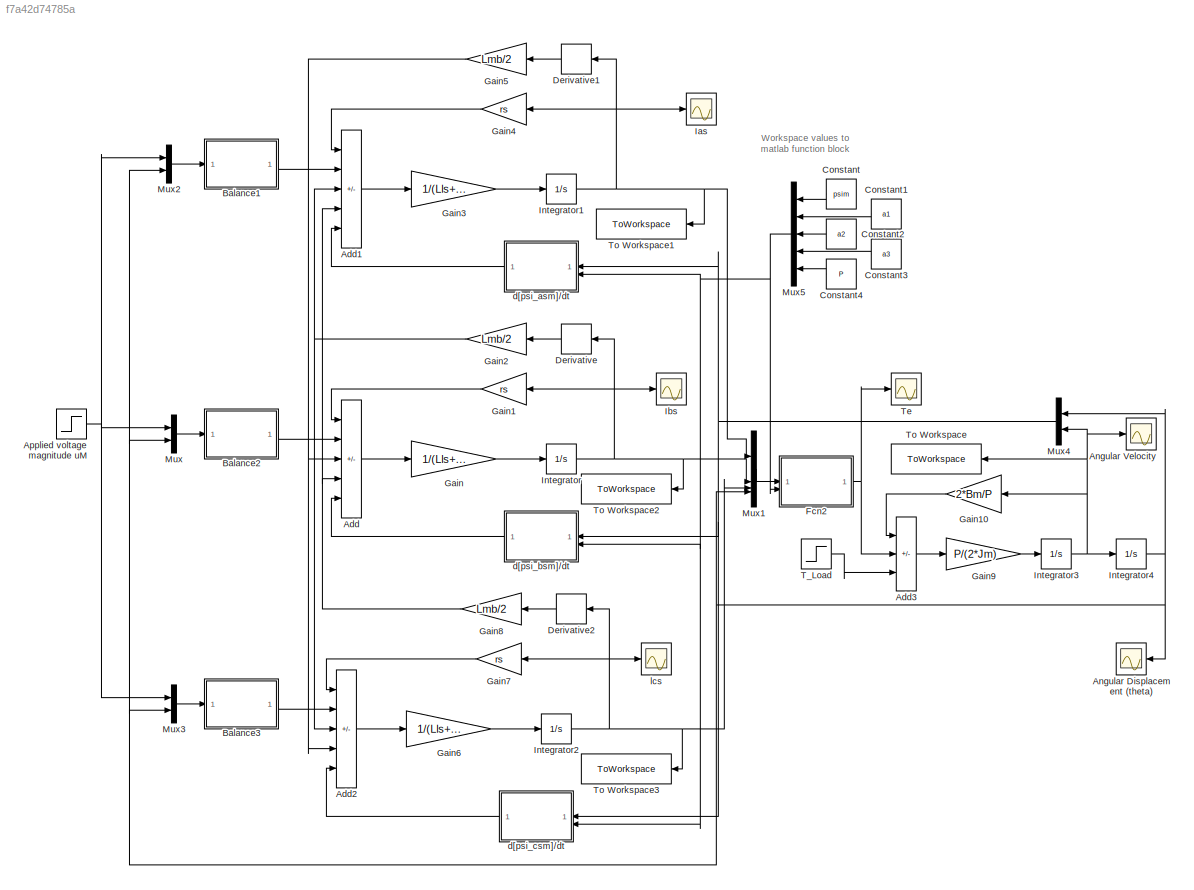
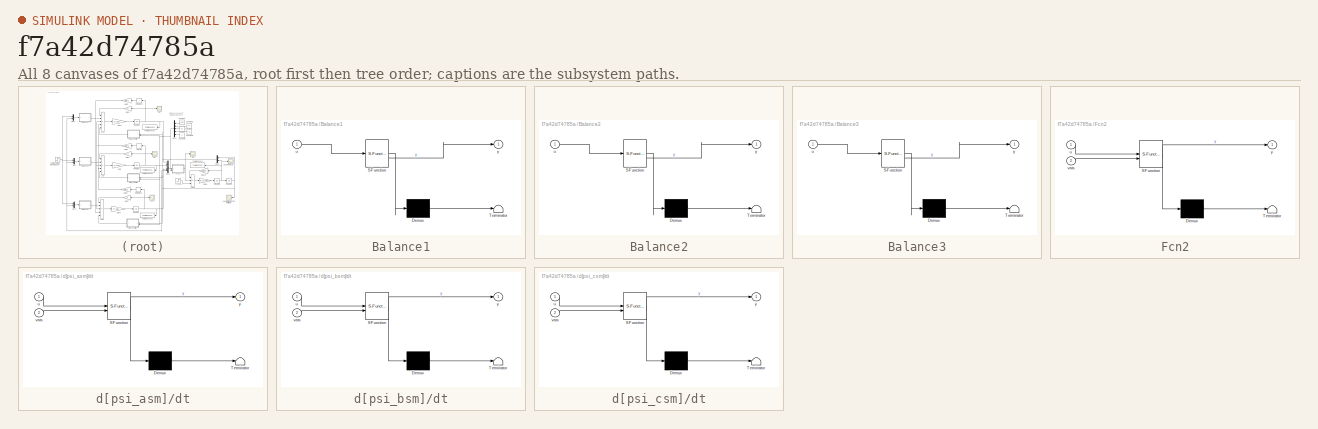
[diagram: thumbnail index - all 8 canvases of the model, root first then tree order]
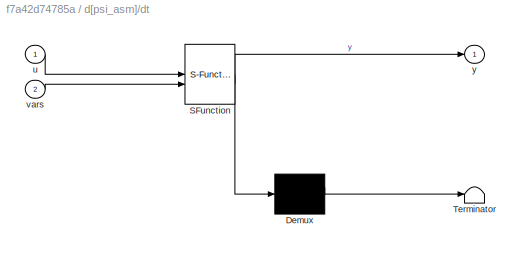
MODEL slx_f7a42d74785a
KIND model
CONFIG AbsTol = 1e-9
CONFIG EnableMultiTasking = off
CONFIG FixedStep = auto
CONFIG MaxStep = auto
CONFIG MinStep = auto
CONFIG RelTol = 1e-9
CONFIG SampleTimeConstraint = Unconstrained
CONFIG SolverName = VariableStepAuto
CONFIG StartTime = 0.0
CONFIG StopTime = 0.05
BLOCK [Sum] Add
  IconShape = rectangular
  Inputs = -+++-
BLOCK [Sum] Add1
  IconShape = rectangular
  Inputs = -+++-
BLOCK [Sum] Add2
  IconShape = rectangular
  Inputs = -+++-
BLOCK [Sum] Add3
  IconShape = rectangular
  Inputs = -+-
BLOCK [Scope] Angular Displacement (theta)
  Floating = off
  NumInputPorts = 1
  ScopeSpecificationString = Simulink.scopes.TimeScopeBlockCfg('CurrentConfiguration', extmgr.ConfigurationSet(extmgr.Configuration('Core','General UI',true),extmgr.Configuration('Core','Source UI',true),extmgr.Configuration('Sources','WiredSimulink',true,'DataLoggingVariableName','ScopeData4'),extmgr.Configuration('Visuals','Time Domain',true,'SerializedDisplays',{struct('MinYLimReal','-2.99483','MaxYLimReal','26.95343','YLa...<+1363ch>
BLOCK [Scope] Angular Velocity
  Floating = off
  NumInputPorts = 1
  ScopeSpecificationString = Simulink.scopes.TimeScopeBlockCfg('CurrentConfiguration', extmgr.ConfigurationSet(extmgr.Configuration('Core','General UI',true),extmgr.Configuration('Core','Source UI',true),extmgr.Configuration('Sources','WiredSimulink',true,'DataLoggingVariableName','ScopeData3'),extmgr.Configuration('Visuals','Time Domain',true,'SerializedDisplays',{struct('MinYLimReal','-142.91451','MaxYLimReal','1285.77201',...<+1529ch>
BLOCK [Step] Applied voltage magnitude uM
  After = uM
  SampleTime = 0
  Time = 0
BLOCK [SubSystem] Balance1
  ErrorFcn = Stateflow.Translate.translate
  LibrarySourceBlock = simulink/User-Defined\nFunctions/MATLAB Function
  PermitHierarchicalResolution = ExplicitOnly
  SFBlockType = MATLAB Function
  TreatAsAtomicUnit = on
BLOCK [Demux] Balance1/ Demux 
  Outputs = 1
BLOCK [S-Function] Balance1/ SFunction 
  EnableBusSupport = on
  FunctionName = sf_sfun
  PortCounts = [1 2]
  SFcnIsStateOwnerBlock = off
  SFunctionDeploymentMode = off
  Tag = Stateflow S-Function 1
BLOCK [Terminator] Balance1/ Terminator 
BLOCK [Inport] Balance1/u
BLOCK [Outport] Balance1/y
BLOCK [SubSystem] Balance2
  ErrorFcn = Stateflow.Translate.translate
  LibrarySourceBlock = simulink/User-Defined\nFunctions/MATLAB Function
  PermitHierarchicalResolution = ExplicitOnly
  SFBlockType = MATLAB Function
  TreatAsAtomicUnit = on
BLOCK [Demux] Balance2/ Demux 
  Outputs = 1
BLOCK [S-Function] Balance2/ SFunction 
  EnableBusSupport = on
  FunctionName = sf_sfun
  PortCounts = [1 2]
  SFcnIsStateOwnerBlock = off
  SFunctionDeploymentMode = off
  Tag = Stateflow S-Function 3
BLOCK [Terminator] Balance2/ Terminator 
BLOCK [Inport] Balance2/u
BLOCK [Outport] Balance2/y
BLOCK [SubSystem] Balance3
  ErrorFcn = Stateflow.Translate.translate
  LibrarySourceBlock = simulink/User-Defined\nFunctions/MATLAB Function
  PermitHierarchicalResolution = ExplicitOnly
  SFBlockType = MATLAB Function
  TreatAsAtomicUnit = on
BLOCK [Demux] Balance3/ Demux 
  Outputs = 1
BLOCK [S-Function] Balance3/ SFunction 
  EnableBusSupport = on
  FunctionName = sf_sfun
  PortCounts = [1 2]
  SFcnIsStateOwnerBlock = off
  SFunctionDeploymentMode = off
  Tag = Stateflow S-Function 4
BLOCK [Terminator] Balance3/ Terminator 
BLOCK [Inport] Balance3/u
BLOCK [Outport] Balance3/y
BLOCK [Constant] Constant
  NameLocation = top
  Value = psim
BLOCK [Constant] Constant1
  NameLocation = top
  Value = a1
BLOCK [Constant] Constant2
  NameLocation = top
  Value = a2
BLOCK [Constant] Constant3
  NameLocation = top
  Value = a3
BLOCK [Constant] Constant4
  NameLocation = top
  Value = P
BLOCK [Derivative] Derivative
  NameLocation = top
BLOCK [Derivative] Derivative1
  NameLocation = top
BLOCK [Derivative] Derivative2
  NameLocation = top
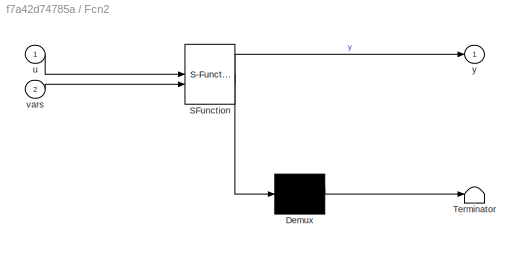
BLOCK [SubSystem] Fcn2
  ErrorFcn = Stateflow.Translate.translate
  LibrarySourceBlock = simulink/User-Defined\nFunctions/MATLAB Function
  PermitHierarchicalResolution = ExplicitOnly
  SFBlockType = MATLAB Function
  TreatAsAtomicUnit = on
BLOCK [Demux] Fcn2/ Demux 
  Outputs = 1
BLOCK [S-Function] Fcn2/ SFunction 
  EnableBusSupport = on
  FunctionName = sf_sfun
  PortCounts = [2 2]
  SFcnIsStateOwnerBlock = off
  SFunctionDeploymentMode = off
  Tag = Stateflow S-Function 2
BLOCK [Terminator] Fcn2/ Terminator 
BLOCK [Inport] Fcn2/u
BLOCK [Inport] Fcn2/vars
  Port = 2
BLOCK [Outport] Fcn2/y
BLOCK [Gain] Gain
  Gain = 1/(Lls+Lmb)
BLOCK [Gain] Gain1
  Gain = rs
  NameLocation = top
BLOCK [Gain] Gain10
  Gain = 2*Bm/P
  NameLocation = top
BLOCK [Gain] Gain2
  Gain = Lmb/2
  NameLocation = top
BLOCK [Gain] Gain3
  Gain = 1/(Lls+Lmb)
BLOCK [Gain] Gain4
  Gain = rs
  NameLocation = top
BLOCK [Gain] Gain5
  Gain = Lmb/2
  NameLocation = top
BLOCK [Gain] Gain6
  Gain = 1/(Lls+Lmb)
BLOCK [Gain] Gain7
  Gain = rs
  NameLocation = top
BLOCK [Gain] Gain8
  Gain = Lmb/2
  NameLocation = top
BLOCK [Gain] Gain9
  Gain = P/(2*Jm)
BLOCK [Scope] Ias
  Floating = off
  NumInputPorts = 1
  ScopeSpecificationString = Simulink.scopes.TimeScopeBlockCfg('CurrentConfiguration', extmgr.ConfigurationSet(extmgr.Configuration('Core','General UI',true),extmgr.Configuration('Core','Source UI',true),extmgr.Configuration('Sources','WiredSimulink',true,'DataLoggingVariableName','ScopeData1'),extmgr.Configuration('Visuals','Time Domain',true,'SerializedDisplays',{struct('MinYLimReal','-101.19321','MaxYLimReal','100.54581','...<+1441ch>
BLOCK [Scope] Ibs
  Floating = off
  NumInputPorts = 1
  ScopeSpecificationString = Simulink.scopes.TimeScopeBlockCfg('CurrentConfiguration', extmgr.ConfigurationSet(extmgr.Configuration('Core','General UI',true),extmgr.Configuration('Core','Source UI',true),extmgr.Configuration('Sources','WiredSimulink',true),extmgr.Configuration('Visuals','Time Domain',true,'SerializedDisplays',{struct('MinYLimReal','-123.07013','MaxYLimReal','122.50189','YLabelReal','','MinYLimMag',' 0.00000',...<+1485ch>
BLOCK [Integrator] Integrator
BLOCK [Integrator] Integrator1
BLOCK [Integrator] Integrator2
BLOCK [Integrator] Integrator3
BLOCK [Integrator] Integrator4
BLOCK [Mux] Mux
  DisplayOption = bar
  Inputs = 2
BLOCK [Mux] Mux1
  DisplayOption = bar
BLOCK [Mux] Mux2
  DisplayOption = bar
  Inputs = 2
BLOCK [Mux] Mux3
  DisplayOption = bar
  Inputs = 2
BLOCK [Mux] Mux4
  DisplayOption = bar
  Inputs = 2
  NameLocation = top
BLOCK [Mux] Mux5
  DisplayOption = bar
  Inputs = 5
  NameLocation = top
BLOCK [Step] T_Load
  After = TL
  Before = TL0
  SampleTime = 0
  Time = 0.025
BLOCK [Scope] Te
  Floating = off
  NumInputPorts = 1
  ScopeSpecificationString = Simulink.scopes.TimeScopeBlockCfg('CurrentConfiguration', extmgr.ConfigurationSet(extmgr.Configuration('Core','General UI',true),extmgr.Configuration('Core','Source UI',true),extmgr.Configuration('Sources','WiredSimulink',true,'DataLoggingVariableName','ScopeData1'),extmgr.Configuration('Visuals','Time Domain',true,'SerializedDisplays',{struct('MinYLimReal','-3.17804','MaxYLimReal','6.07827','YLab...<+1363ch>
BLOCK [ToWorkspace] To Workspace
  FixptAsFi = on
  MaxDataPoints = inf
  NameLocation = top
  SampleTime = -1
  SaveFormat = Timeseries
  VariableName = sim_vel
BLOCK [ToWorkspace] To Workspace1
  FixptAsFi = on
  MaxDataPoints = inf
  NameLocation = top
  SampleTime = -1
  SaveFormat = Timeseries
  VariableName = sim_ias
BLOCK [ToWorkspace] To Workspace2
  FixptAsFi = on
  MaxDataPoints = inf
  NameLocation = top
  SampleTime = -1
  SaveFormat = Timeseries
  VariableName = sim_ibs
BLOCK [ToWorkspace] To Workspace3
  FixptAsFi = on
  MaxDataPoints = inf
  NameLocation = top
  SampleTime = -1
  SaveFormat = Timeseries
  VariableName = sim_ics
BLOCK [SubSystem] d[psi_asm]//dt
  ErrorFcn = Stateflow.Translate.translate
  LibrarySourceBlock = simulink/User-Defined\nFunctions/MATLAB Function
  PermitHierarchicalResolution = ExplicitOnly
  SFBlockType = MATLAB Function
  TreatAsAtomicUnit = on
BLOCK [Demux] d[psi_asm]//dt/ Demux 
  Outputs = 1
BLOCK [S-Function] d[psi_asm]//dt/ SFunction 
  EnableBusSupport = on
  FunctionName = sf_sfun
  PortCounts = [2 2]
  SFcnIsStateOwnerBlock = off
  SFunctionDeploymentMode = off
  Tag = Stateflow S-Function 5
BLOCK [Terminator] d[psi_asm]//dt/ Terminator 
BLOCK [Inport] d[psi_asm]//dt/u
BLOCK [Inport] d[psi_asm]//dt/vars
  Port = 2
BLOCK [Outport] d[psi_asm]//dt/y
BLOCK [SubSystem] d[psi_bsm]//dt
  ErrorFcn = Stateflow.Translate.translate
  LibrarySourceBlock = simulink/User-Defined\nFunctions/MATLAB Function
  PermitHierarchicalResolution = ExplicitOnly
  SFBlockType = MATLAB Function
  TreatAsAtomicUnit = on
BLOCK [Demux] d[psi_bsm]//dt/ Demux 
  Outputs = 1
BLOCK [S-Function] d[psi_bsm]//dt/ SFunction 
  EnableBusSupport = on
  FunctionName = sf_sfun
  PortCounts = [2 2]
  SFcnIsStateOwnerBlock = off
  SFunctionDeploymentMode = off
  Tag = Stateflow S-Function 6
BLOCK [Terminator] d[psi_bsm]//dt/ Terminator 
BLOCK [Inport] d[psi_bsm]//dt/u
BLOCK [Inport] d[psi_bsm]//dt/vars
  Port = 2
BLOCK [Outport] d[psi_bsm]//dt/y
BLOCK [SubSystem] d[psi_csm]//dt
  ErrorFcn = Stateflow.Translate.translate
  LibrarySourceBlock = simulink/User-Defined\nFunctions/MATLAB Function
  PermitHierarchicalResolution = ExplicitOnly
  SFBlockType = MATLAB Function
  TreatAsAtomicUnit = on
BLOCK [Demux] d[psi_csm]//dt/ Demux 
  Outputs = 1
BLOCK [S-Function] d[psi_csm]//dt/ SFunction 
  EnableBusSupport = on
  FunctionName = sf_sfun
  PortCounts = [2 2]
  SFcnIsStateOwnerBlock = off
  SFunctionDeploymentMode = off
  Tag = Stateflow S-Function 8
BLOCK [Terminator] d[psi_csm]//dt/ Terminator 
BLOCK [Inport] d[psi_csm]//dt/u
BLOCK [Inport] d[psi_csm]//dt/vars
  Port = 2
BLOCK [Outport] d[psi_csm]//dt/y
BLOCK [Scope] lcs
  Floating = off
  NumInputPorts = 1
  ScopeSpecificationString = Simulink.scopes.TimeScopeBlockCfg('CurrentConfiguration', extmgr.ConfigurationSet(extmgr.Configuration('Core','General UI',true),extmgr.Configuration('Core','Source UI',true),extmgr.Configuration('Sources','WiredSimulink',true,'DataLoggingVariableName','ScopeData2'),extmgr.Configuration('Visuals','Time Domain',true,'SerializedDisplays',{struct('MinYLimReal','-94.96561','MaxYLimReal','94.53408','YL...<+1518ch>
ANNOTATION (root): Workspace values to matlab function block
LINE Add1:1 -> Gain3:1
LINE Add2:1 -> Gain6:1
LINE Add3:1 -> Gain9:1
LINE Add:1 -> Gain:1
NET Applied voltage magnitude uM:1 -> Mux2:1, Mux3:1, Mux:1
LINE Balance1:1 -> Add1:2
LINE Balance2:1 -> Add:2
LINE Balance3:1 -> Add2:2
LINE Constant1:1 -> Mux5:2
LINE Constant2:1 -> Mux5:3
LINE Constant3:1 -> Mux5:4
LINE Constant4:1 -> Mux5:5
LINE Constant:1 -> Mux5:1
LINE Derivative1:1 -> Gain5:1
LINE Derivative2:1 -> Gain8:1
LINE Derivative:1 -> Gain2:1
NET Fcn2:1 -> Add3:2, Te:1
LINE Gain10:1 -> Add3:1
LINE Gain1:1 -> Add:1
NET Gain2:1 -> Add1:3, Add2:3
LINE Gain3:1 -> Integrator1:1
LINE Gain4:1 -> Add1:1
NET Gain5:1 -> Add2:4, Add:3
LINE Gain6:1 -> Integrator2:1
LINE Gain7:1 -> Add2:1
NET Gain8:1 -> Add1:4, Add:4
LINE Gain9:1 -> Integrator3:1
LINE Gain:1 -> Integrator:1
NET Integrator1:1 -> Derivative1:1, Gain4:1, Ias:1, Mux1:1, To Workspace1:1
NET Integrator2:1 -> Derivative2:1, Gain7:1, Mux1:3, To Workspace3:1, lcs:1
NET Integrator3:1 -> Angular Velocity:1, Gain10:1, Integrator4:1, Mux4:2, To Workspace:1
NET Integrator4:1 -> Angular Displacement (theta):1, Mux1:4, Mux2:2, Mux3:2, Mux4:1, Mux:2
NET Integrator:1 -> Derivative:1, Gain1:1, Ibs:1, Mux1:2, To Workspace2:1
LINE Mux1:1 -> Fcn2:1
LINE Mux2:1 -> Balance1:1
LINE Mux3:1 -> Balance3:1
NET Mux4:1 -> d[psi_asm]//dt:1, d[psi_bsm]//dt:1, d[psi_csm]//dt:1
NET Mux5:1 -> Fcn2:2, d[psi_asm]//dt:2, d[psi_bsm]//dt:2, d[psi_csm]//dt:2
LINE Mux:1 -> Balance2:1
LINE T_Load:1 -> Add3:3
LINE d[psi_asm]//dt:1 -> Add1:5
LINE d[psi_bsm]//dt:1 -> Add:5
LINE d[psi_csm]//dt:1 -> Add2:5
note: NET lines group one-source signal fan-out (src -> all destinations, sorted); 1:1 wires keep LINE
CHART Fcn2 states=1 transitions=1
  STATE_LABEL 'eML_blk_kernel()'
  STATE_LABEL 'SCRIPT:\nfunction y = fcn(u,vars)\n\npsim = vars(1);\na1 = vars(2);\na2 = vars(3);\na3 = vars(4);\nP = vars(5);\n\ny = P*psim*(u(1)*cos(u(4))*(a1+3*a2*(sin(u(4)))^2+5*a3*(sin(u(4)))^4)+u(2)*cos(u(4)+2*pi/3)*(a1+3*a2*(sin(u(4)+2*pi/3))^2+5*a3*(sin(u(4)+2*pi/3))^4)+u(3)*cos(u(4)-2*pi/3)*(a1+3*a2*(sin(u(4)-2*pi/3))^2+5*a3*(sin(u(4)-2*pi/3))^4))/2;\n% y = P*psim*(u(1)*cos(u(4))*(a1+3*a2*(sin(u(4)))^2+5*a3*(sin(...<+173ch>'
CHART Balance2 states=1 transitions=1
  STATE_LABEL 'eML_blk_kernel()'
  STATE_LABEL 'SCRIPT:\nfunction y = fcn(u)\n\ny = u(1)*cos(u(2)+2*pi/3);\n'
CHART Balance3 states=1 transitions=1
  STATE_LABEL 'eML_blk_kernel()'
  STATE_LABEL 'SCRIPT:\nfunction y = fcn(u)\n\ny = u(1)*cos(u(2)-2*pi/3);\n'
CHART d[psi_asm]//dt states=1 transitions=1
  STATE_LABEL 'eML_blk_kernel()'
  STATE_LABEL 'SCRIPT:\nfunction y = fcn(u,vars)\n\npsim = vars(1);\na1 = vars(2);\na2 = vars(3);\na3 = vars(4);\n\ny = psim*(u(2)*cos(u(1))*(a1+3*a2*(sin(u(1)))^2+5*a3*(sin(u(1)))^4));\n'
CHART d[psi_bsm]//dt states=1 transitions=1
  STATE_LABEL 'eML_blk_kernel()'
  STATE_LABEL 'SCRIPT:\nfunction y = fcn(u,vars)\n\npsim = vars(1);\na1 = vars(2);\na2 = vars(3);\na3 = vars(4);\n\ny = psim*(u(2)*cos(u(1)+2*pi/3)*(a1+3*a2*(sin(u(1)+2*pi/3))^2+5*a3*(sin(u(1)+2*pi/3))^4));\n% y = psim*(u(2)*cos(u(1)+pi/6)*(a1+3*a2*(sin(u(1)+pi/6))^2+5*a3*(sin(u(1)+pi/6))^4)); % unbalanced\n'
CHART d[psi_csm]//dt states=1 transitions=1
  STATE_LABEL 'eML_blk_kernel()'
  STATE_LABEL 'SCRIPT:\nfunction y = fcn(u,vars)\n\npsim = vars(1);\na1 = vars(2);\na2 = vars(3);\na3 = vars(4);\n\ny = psim*(u(2)*cos(u(1)-2*pi/3)*(a1+3*a2*(sin(u(1)-2*pi/3))^2+5*a3*(sin(u(1)-2*pi/3))^4));\n% y = psim*(u(2)*cos(u(1)-pi/3)*(a1+3*a2*(sin(u(1)-pi/3))^2+5*a3*(sin(u(1)-pi/3))^4)); % unbalanced\n'
CHART Balance1 states=1 transitions=1
  STATE_LABEL 'eML_blk_kernel()'
  STATE_LABEL 'SCRIPT:\nfunction y = fcn(u)\n\ny = u(1)*cos(u(2));\n'
CHART  states=0 transitions=0
CHART  states=0 transitions=0
CHART  states=0 transitions=0
CHART  states=0 transitions=0
CHART  states=0 transitions=0
CHART  states=0 transitions=0
CHART  states=0 transitions=0
